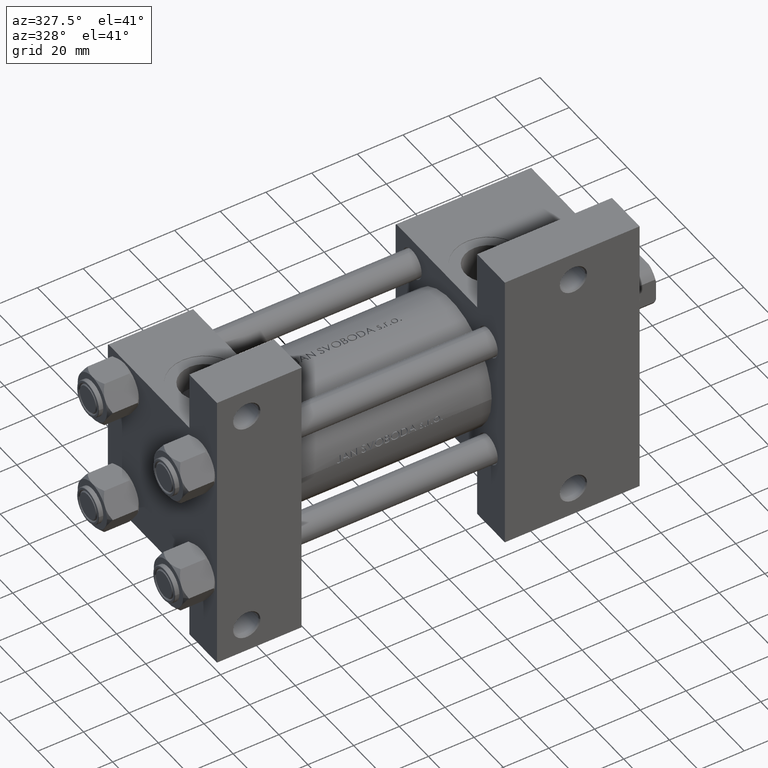
[diagram: clean part render]
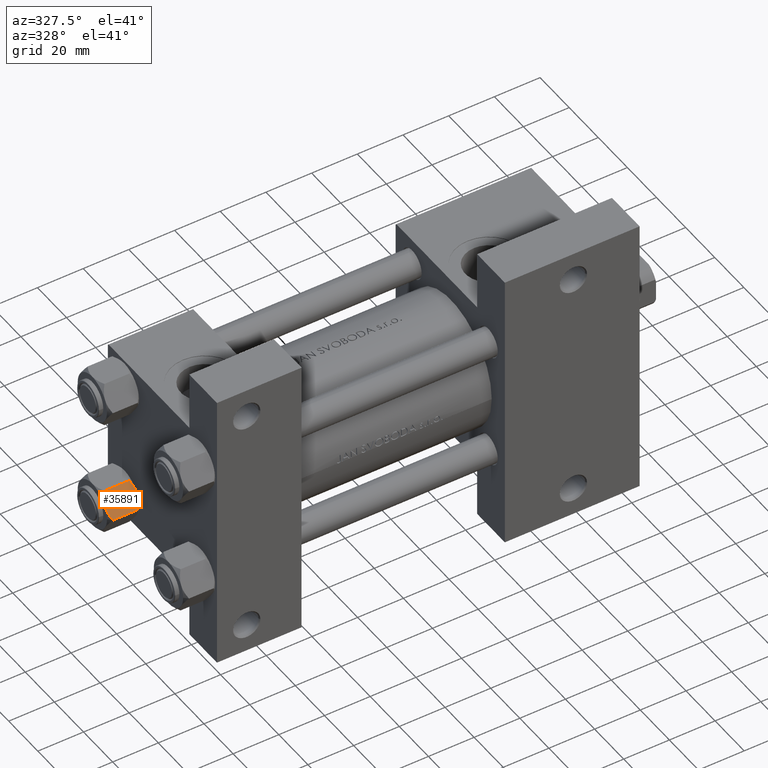
[diagram: same view with one face highlighted and labeled with its STEP entity id]
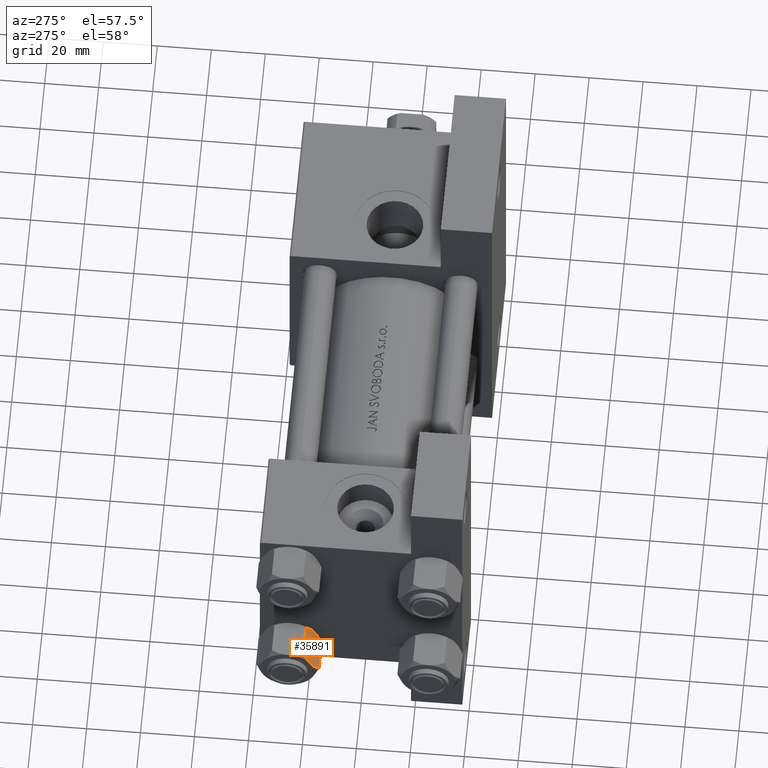
[diagram: same view with one face highlighted and labeled with its STEP entity id]
A machine part, auxiliary view. The second image highlights one B-rep face of the part: STEP entity #35891.
A second angle (auxiliary view) of the same face is appended — the face is thin or edge-on in the first view.
In plain terms, the highlighted planar face has unit normal (-0, 0.866, -0.5).
Its self-contained STEP definition (entity closure, byte-faithful):
#1115 = CARTESIAN_POINT ( 'NONE',  ( 10.69859855102501278, 1.595914123792261829, -0.7141438259524660603 ) ) ;
#2005 = CARTESIAN_POINT ( 'NONE',  ( 11.16498164529022574, 0.7881149087337280257, -12.89823354668504862 ) ) ;
#4436 = CARTESIAN_POINT ( 'NONE',  ( 7.455303369716809847, 7.213466161761385997, -13.69973261901326289 ) ) ;
#5491 = VERTEX_POINT ( 'NONE', #6331 ) ;
#6227 = VERTEX_POINT ( 'NONE', #30097 ) ;
#6331 = CARTESIAN_POINT ( 'NONE',  ( 8.715000000000003411, 5.031607595987588333, -14.00000000000000000 ) ) ;
#7329 = CARTESIAN_POINT ( 'NONE',  ( 11.62000000000000099, -1.607967606633101042E-15, -1.556784808024815669 ) ) ;
#7789 = CARTESIAN_POINT ( 'NONE',  ( 11.62000000000000099, -1.813166800014576593E-15, -14.00000000000000000 ) ) ;
#8239 = VECTOR ( 'NONE', #23728, 1000.000000000000000 ) ;
#8335 = VERTEX_POINT ( 'NONE', #47251 ) ;
#8489 = B_SPLINE_CURVE_WITH_KNOTS ( 'NONE', 3,
 ( #41658, #15506, #22746, #31434, #41905, #46644 ),
 .UNSPECIFIED., .F., .F.,
 ( 4, 2, 4 ),
 ( 0.006022845781655587240, 0.009013049135303635023, 0.01200325248895168367 ),
 .UNSPECIFIED. ) ;
#9066 = CARTESIAN_POINT ( 'NONE',  ( 9.729165168613654657, 3.275021996682081493, -0.1903979688073423326 ) ) ;
#9534 = DIRECTION ( 'NONE',  ( -0.000000000000000000, -0.000000000000000000, 1.000000000000000000 ) ) ;
#10936 = B_SPLINE_CURVE_WITH_KNOTS ( 'NONE', 3,
 ( #33114, #17437, #36849, #36118, #2005, #21410 ),
 .UNSPECIFIED., .F., .F.,
 ( 4, 2, 4 ),
 ( 0.006022845781655591577, 0.009013049135303638493, 0.01200325248895168714 ),
 .UNSPECIFIED. ) ;
#11304 = VERTEX_POINT ( 'NONE', #23106 ) ;
#12315 = EDGE_CURVE ( 'NONE', #6227, #5491, #36990, .T. ) ;
#12395 = CARTESIAN_POINT ( 'NONE',  ( 8.715000000000003411, 5.031607595987588333, -14.00000000000000000 ) ) ;
#12491 = EDGE_CURVE ( 'NONE', #42139, #8335, #8489, .T. ) ;
#12635 = ORIENTED_EDGE ( 'NONE', *, *, #18775, .F. ) ;
#12802 = CARTESIAN_POINT ( 'NONE',  ( 9.974696630283190757, 2.849749030213790224, -0.3002673809867378307 ) ) ;
#15506 = CARTESIAN_POINT ( 'NONE',  ( 8.209704053696574633, 5.906805847843726198, 1.265467223197924312E-15 ) ) ;
#15876 = CARTESIAN_POINT ( 'NONE',  ( 8.460569896449619876, 5.472293462311864864, -14.00000000000000355 ) ) ;
#16296 = CARTESIAN_POINT ( 'NONE',  ( 8.715000000000003411, 5.031607595987588333, 0.000000000000000000 ) ) ;
#16539 = CARTESIAN_POINT ( 'NONE',  ( 11.62000000000000099, -1.607967606633101042E-15, -1.556784808024815669 ) ) ;
#16643 = PLANE ( 'NONE',  #20247 ) ;
#16791 = CARTESIAN_POINT ( 'NONE',  ( 8.715000000000003411, 5.031607595987588333, 0.000000000000000000 ) ) ;
#17437 = CARTESIAN_POINT ( 'NONE',  ( 9.220295946303432189, 4.156409344131451356, -14.00000000000000178 ) ) ;
#17638 = CARTESIAN_POINT ( 'NONE',  ( 5.810000000000000497, 10.06321519197518022, -14.00000000000000000 ) ) ;
#18377 = VECTOR ( 'NONE', #9534, 1000.000000000000000 ) ;
#18775 = EDGE_CURVE ( 'NONE', #5491, #11304, #10936, .T. ) ;
#18860 = B_SPLINE_CURVE_WITH_KNOTS ( 'NONE', 3,
 ( #16539, #31727, #1115, #12802, #9066, #43435, #46942, #16296 ),
 .UNSPECIFIED., .F., .F.,
 ( 4, 2, 2, 4 ),
 ( 2.544312114904956385E-07, 0.003011550106433539924, 0.004517197944044563582, 0.006022845781655587240 ),
 .UNSPECIFIED. ) ;
#20247 = AXIS2_PLACEMENT_3D ( 'NONE', #17638, #47550, #28836 ) ;
#20293 = ORIENTED_EDGE ( 'NONE', *, *, #12491, .F. ) ;
#21410 = CARTESIAN_POINT ( 'NONE',  ( 11.62000000000000099, -1.795242522838921761E-15, -12.44321519197518455 ) ) ;
#21635 = VERTEX_POINT ( 'NONE', #7329 ) ;
#22746 = CARTESIAN_POINT ( 'NONE',  ( 7.713000053756308816, 6.767122412062953174, -0.1545239700039844066 ) ) ;
#23106 = CARTESIAN_POINT ( 'NONE',  ( 11.62000000000000099, -1.795242522838921761E-15, -12.44321519197518455 ) ) ;
#23372 = CARTESIAN_POINT ( 'NONE',  ( 8.202333004087902779, 5.919572880271052995, -13.96005881939309212 ) ) ;
#23728 = DIRECTION ( 'NONE',  ( -0.000000000000000000, -0.000000000000000000, 1.000000000000000000 ) ) ;
#23972 = LINE ( 'NONE', #7789, #8239 ) ;
#24303 = EDGE_CURVE ( 'NONE', #6227, #8335, #28703, .T. ) ;
#24478 = CARTESIAN_POINT ( 'NONE',  ( 5.810000000000000497, 10.06321519197518022, -14.00000000000000000 ) ) ;
#27090 = CARTESIAN_POINT ( 'NONE',  ( 6.265545725125283738, 9.274186850887380373, -12.89876091710046602 ) ) ;
#27580 = CARTESIAN_POINT ( 'NONE',  ( 7.700834831386346835, 6.788193195293095172, -13.80960203119265728 ) ) ;
#28703 = LINE ( 'NONE', #24478, #18377 ) ;
#28836 = DIRECTION ( 'NONE',  ( 0.4999999999999998335, -0.8660254037844387076, 0.000000000000000000 ) ) ;
#30097 = CARTESIAN_POINT ( 'NONE',  ( 5.810000000000000497, 10.06321519197518022, -12.44321519197518278 ) ) ;
#31045 = EDGE_CURVE ( 'NONE', #11304, #21635, #23972, .T. ) ;
#31434 = CARTESIAN_POINT ( 'NONE',  ( 6.733375043383499126, 8.463882702393842550, -0.7114554706434507159 ) ) ;
#31559 = CARTESIAN_POINT ( 'NONE',  ( 6.731401448974989599, 8.467301068182914392, -13.28585617404753272 ) ) ;
#31725 = ORIENTED_EDGE ( 'NONE', *, *, #31045, .F. ) ;
#31727 = CARTESIAN_POINT ( 'NONE',  ( 11.16445427487472131, 0.7890283410877951820, -1.101239082899533317 ) ) ;
#33114 = CARTESIAN_POINT ( 'NONE',  ( 8.715000000000003411, 5.031607595987588333, -14.00000000000000000 ) ) ;
#35166 = EDGE_LOOP ( 'NONE', ( #39832, #39346, #20293, #46509, #31725, #12635 ) ) ;
#35891 = ADVANCED_FACE ( 'NONE', ( #36562 ), #16643, .F. ) ;
#36118 = CARTESIAN_POINT ( 'NONE',  ( 10.69662495661650503, 1.599332489581332339, -13.28854452935654962 ) ) ;
#36562 = FACE_OUTER_BOUND ( 'NONE', #35166, .T. ) ;
#36849 = CARTESIAN_POINT ( 'NONE',  ( 9.716999946243698005, 3.296092779912227044, -13.84547602999601779 ) ) ;
#36990 = B_SPLINE_CURVE_WITH_KNOTS ( 'NONE', 3,
 ( #46026, #27090, #31559, #4436, #27580, #23372, #15876, #12395 ),
 .UNSPECIFIED., .F., .F.,
 ( 4, 2, 2, 4 ),
 ( 2.544312114902182352E-07, 0.003011550106433540791, 0.004517197944044566184, 0.006022845781655591577 ),
 .UNSPECIFIED. ) ;
#39346 = ORIENTED_EDGE ( 'NONE', *, *, #24303, .T. ) ;
#39832 = ORIENTED_EDGE ( 'NONE', *, *, #12315, .F. ) ;
#41658 = CARTESIAN_POINT ( 'NONE',  ( 8.715000000000003411, 5.031607595987588333, 0.000000000000000000 ) ) ;
#41905 = CARTESIAN_POINT ( 'NONE',  ( 6.265018354709775750, 9.275100283241453525, -1.101766453314955152 ) ) ;
#42139 = VERTEX_POINT ( 'NONE', #16791 ) ;
#43435 = CARTESIAN_POINT ( 'NONE',  ( 9.227666995912102266, 4.143642311704122783, -0.03994118060690848154 ) ) ;
#46026 = CARTESIAN_POINT ( 'NONE',  ( 5.810000000000000497, 10.06321519197518022, -12.44321519197518278 ) ) ;
#46509 = ORIENTED_EDGE ( 'NONE', *, *, #47136, .F. ) ;
#46644 = CARTESIAN_POINT ( 'NONE',  ( 5.810000000000000497, 10.06321519197518022, -1.556784808024817890 ) ) ;
#46942 = CARTESIAN_POINT ( 'NONE',  ( 8.969430103550381617, 4.590921729663312689, 1.314595134138673732E-15 ) ) ;
#47136 = EDGE_CURVE ( 'NONE', #21635, #42139, #18860, .T. ) ;
#47251 = CARTESIAN_POINT ( 'NONE',  ( 5.810000000000000497, 10.06321519197518022, -1.556784808024817890 ) ) ;
#47550 = DIRECTION ( 'NONE',  ( -0.8660254037844387076, -0.4999999999999998335, 0.000000000000000000 ) ) ;